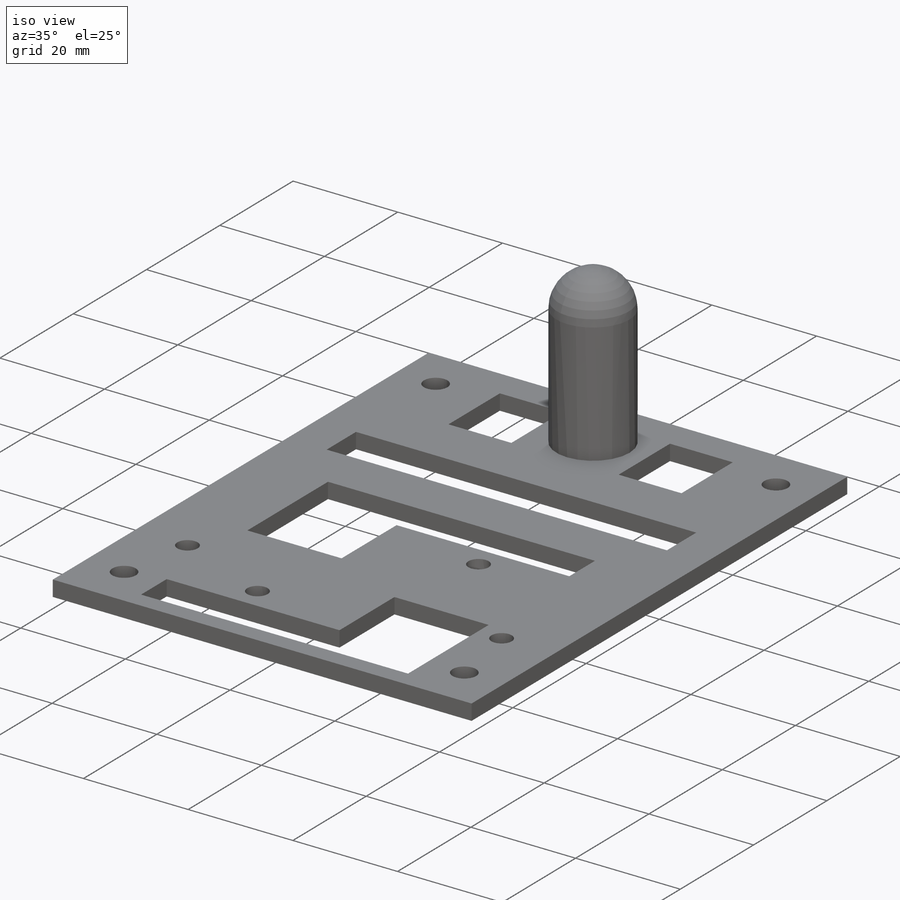
[diagram: iso view]
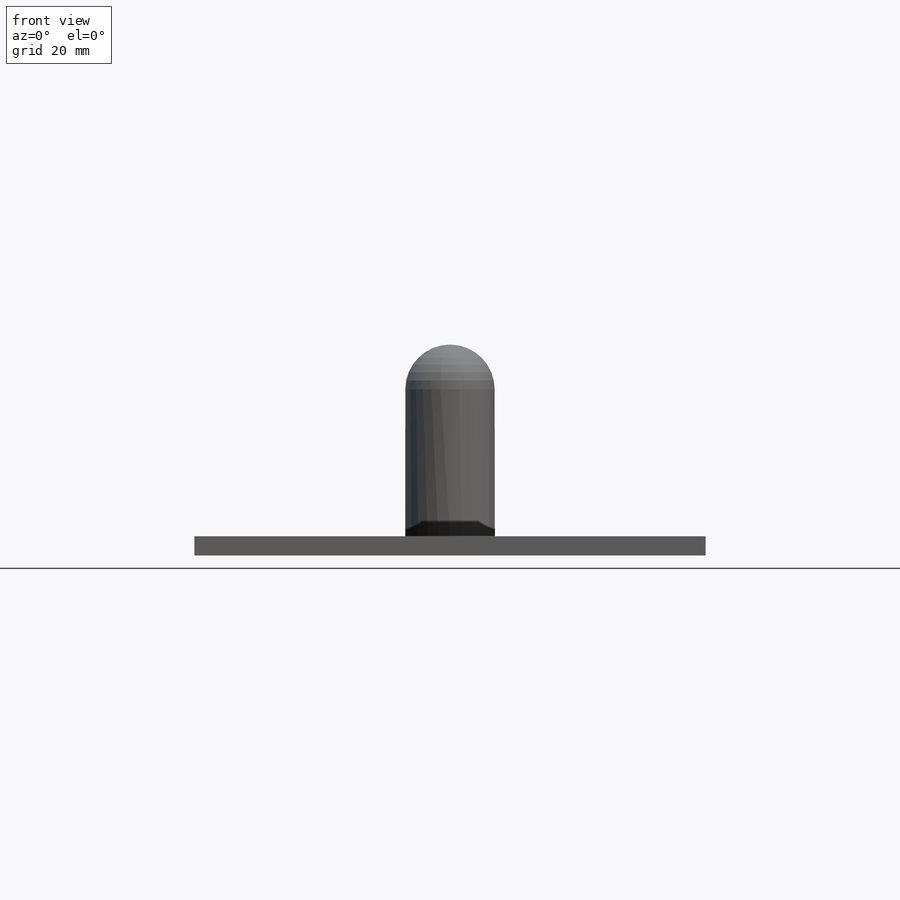
[diagram: front view]
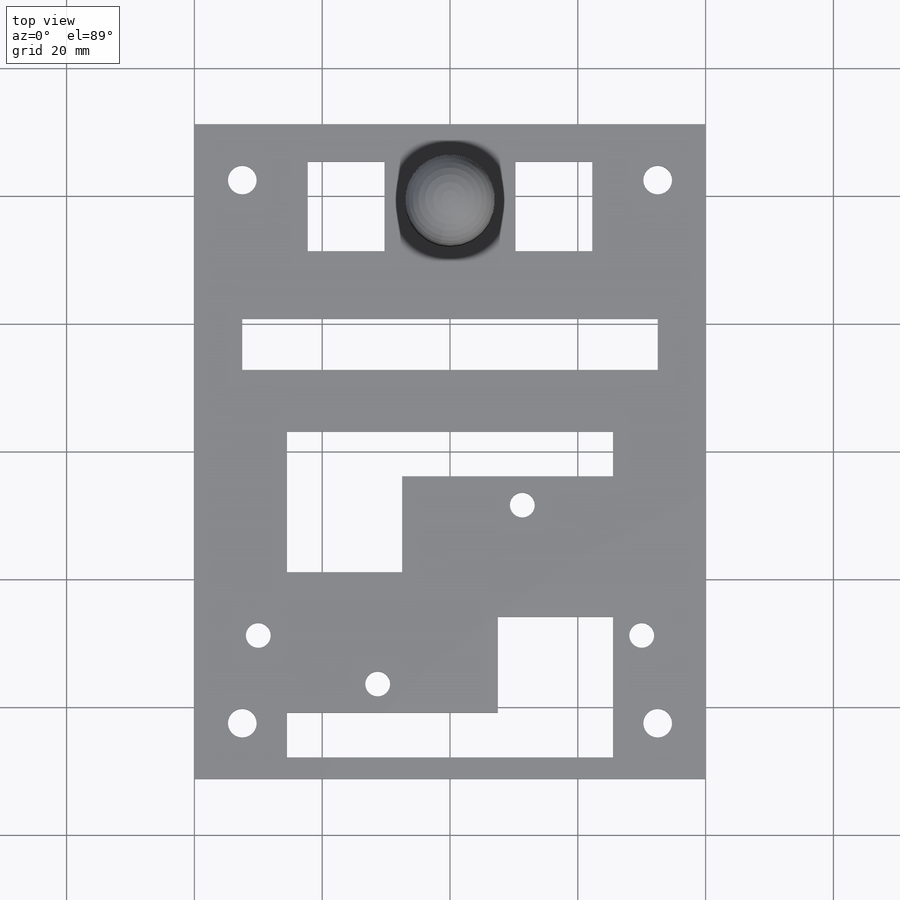
[diagram: top view]
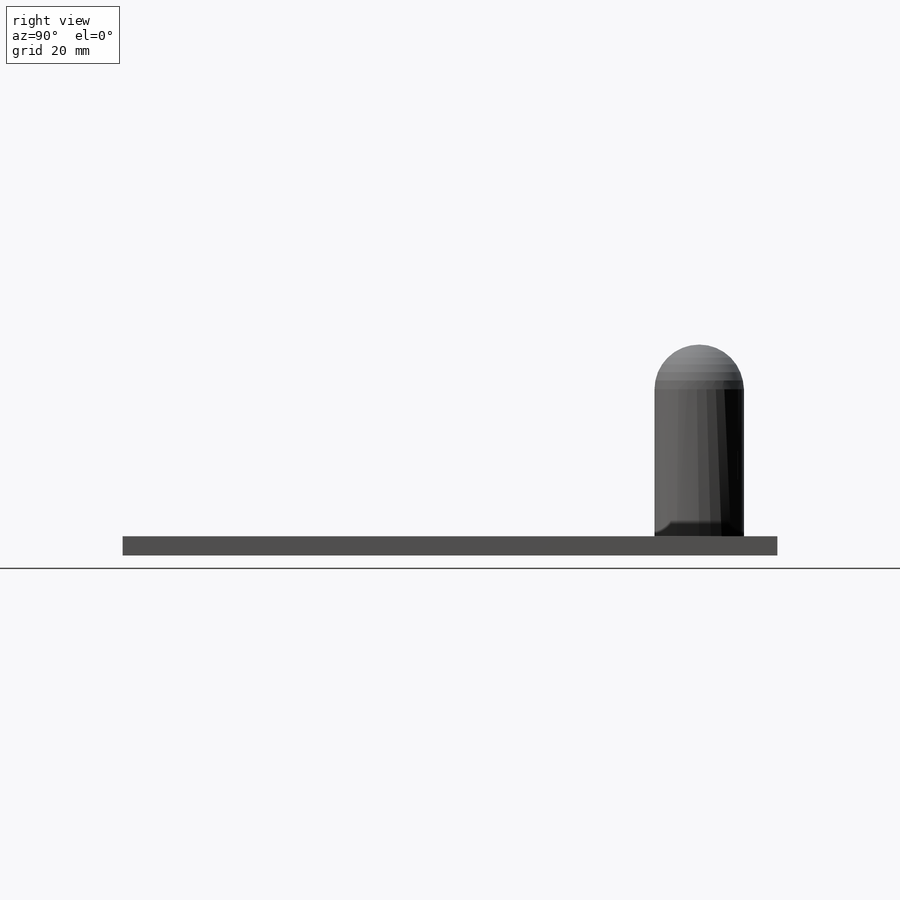
[diagram: right view]
SOLIDWORKS PART (.sldprt)
format: sldprt  version: not decoded by parser v0  size: 483,328 bytes
history: native  units: mm
features: sketch x17, plane x6, cut_extrude x5, hole x3, material x1, extrude x1, mirror x1, revolve x1 (+9 scaffold rows collapsed)
feature tree (44):
  scaffold x9  (default folders/planes/origin — collapsed)
  material  "PF"
  plane  "Plan de face"
  plane  "Plan de dessus"
  plane  "Plan de droite"
  sketch  "Esquisse1"  dims[D1=130.0mm]
  extrude  "disque"  Depth=3mm
  sketch  "Esquisse3"  dims[c1.D1=~114.600422mm c2.D1=~1.054405deg c3.D1=40.0mm c3.D2=200.0mm]
  cut_extrude  "cotés"  [1 undecoded]
  sketch  "Esquisse4"  dims[D1=80.0mm D2=55.0mm]
  sketch  "Esquisse10"  dims[D1=85.0mm D2=65.0mm]
  hole  "Dégagement M3.52"  Diameter=3.9mm Depth=3mm
  sketch  "Esquisse8"  dims[D1=30.0mm]
  sketch  "Esquisse7"  dims[hole-wizard template sketch: 60 standard entries collapsed; hole parameters kept: c18.Profondeur du perçage jusqu'au prochain=3.0mm]
  plane  "Plan1"
  mirror  "Symétrie1"
  hole  "Dégagement M42"  Diameter=4.5mm Depth=3mm
  sketch  "Esquisse12"
  sketch  "Esquisse13"  dims[hole-wizard template sketch: 61 standard entries collapsed; hole parameters above]
  plane  "Plan2"
  sketch  "Esquisse14"  dims[D1=3.0mm D2=30.0mm D3=4.0mm D4=4.0mm]
  revolve  "Révolution1"  Angle=360deg
  sketch  "Esquisse15"
  cut_extrude  "Enlèv. mat.-Extru.1"  [1 undecoded]
  plane  "Plan3"
  sketch  "emplacement compos"  dims[c1.D1=5.0mm c1.D2=50.0mm c1.D3=19.0mm c1.D4=65.0mm c1.D5=48.0mm c1.D6=51.0mm c2.D1=15.0mm c2.D2=4.0mm c2.D7=3.0mm c2.D8=36.0mm c2.D9=28.0mm c2.D10=~28.495614mm c3.D1=3.0mm c3.D10=~1.469508mm c4.D1=~3.367377mm]
  hole  "Dégagement M3.53"  Diameter=3.9mm Depth=3mm
  sketch  "Esquisse20"
  sketch  "Esquisse19"  dims[hole-wizard template sketch: 46 standard entries collapsed; hole parameters kept: c15.Diamètre du perçage=3.9mm c15.Profondeur du perçage=3.0mm c15.D3=~14.816244mm c15.Angle de pointe=118.0deg]
  sketch  "Esquisse22"  dims[c1.D1=6.0mm c1.D2=7.0mm c1.D3=50.0mm c2.D1=8.0mm c2.D3=65.0mm]
  cut_extrude  "Enlèv. mat.-Extru.3"  Depth=10mm
  sketch  "Esquisse23"  dims[D1=12.0mm D2=14.0mm D3=~16.668178mm]
  cut_extrude  "Enlèv. mat.-Extru.4"  Depth=10mm
  sketch  "Esquisse24"  dims[D1=15.0mm D2=15.0mm]
  cut_extrude  "Enlèv. mat.-Extru.5"  Depth=10mm
  sketch  "emplacement moteur"  dims[D1=15.0mm D2=60.0mm D3=58.0mm]
decode coverage: 22 of 28 modeling features carry decoded parameters
note: ~ marks probable driven/reference dimensions
note: 2 parameter values undecoded
note: suppression state not decoded; provenance and decode notes live in map.json
